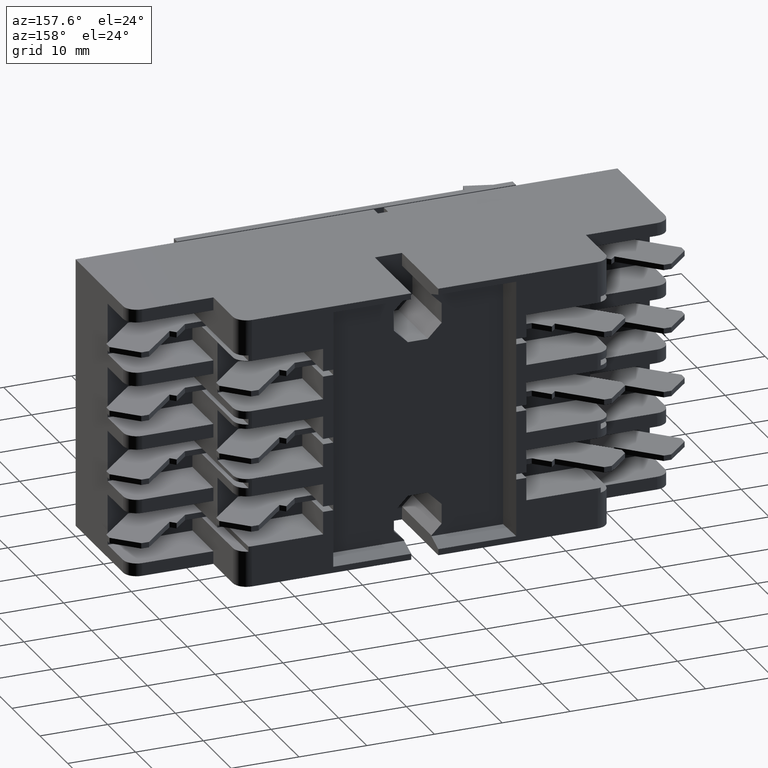
[diagram: clean part render]
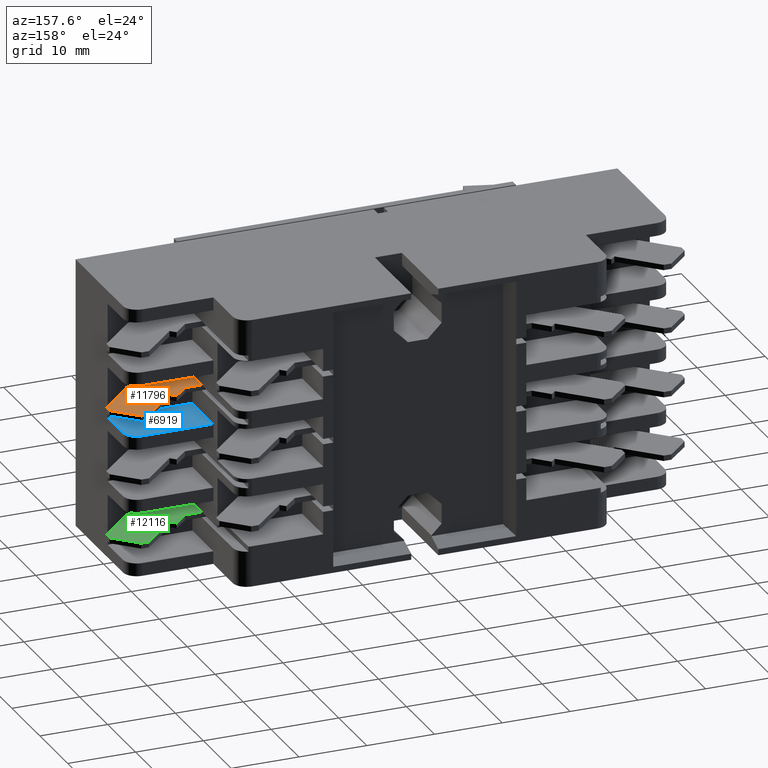
[diagram: same view with three faces highlighted in distinct colors, each labeled with its STEP entity id]
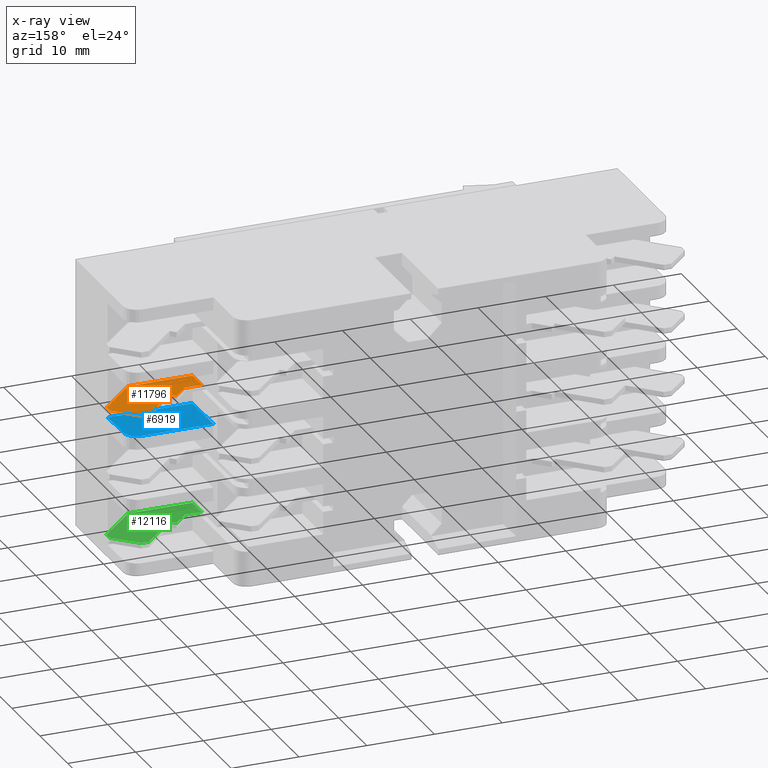
[diagram: x-ray of the same camera — body ghosted, the three highlighted faces saturated]
A machine part, auxiliary view with three faces highlighted in distinct colors.
The next image is the same camera in x-ray (body ghosted, the three faces saturated) — at least one of them is partly hidden behind the body in this view.
Their STEP definitions:

[orange] entity #11796 — the highlighted planar face has unit normal (0, 0, 1).
#6826=CARTESIAN_POINT('',(36.999999999999993,11.500000000000014,-14.750000000000014));
#6827=VERTEX_POINT('',#6826);
#6828=CARTESIAN_POINT('',(27.499999999999993,11.500000000000012,-14.750000000000014));
#6829=VERTEX_POINT('',#6828);
#6830=CARTESIAN_POINT('',(36.999999999999993,11.500000000000012,-14.750000000000014));
#6831=DIRECTION('',(-1.0,0.0,0.0));
#6832=VECTOR('',#6831,9.500000000000000);
#6833=LINE('',#6830,#6832);
#6834=EDGE_CURVE('',#6827,#6829,#6833,.T.);
#8969=CARTESIAN_POINT('',(27.499999999999986,14.879999999999995,-14.750000000000014));
#8970=VERTEX_POINT('',#8969);
#9490=CARTESIAN_POINT('',(27.499999999999986,11.500000000000012,-14.750000000000016));
#9491=DIRECTION('',(0.0,1.0,0.0));
#9492=VECTOR('',#9491,3.379999999999983);
#9493=LINE('',#9490,#9492);
#9494=EDGE_CURVE('',#6829,#8970,#9493,.T.);
#11526=CARTESIAN_POINT('',(42.444722215136409,16.944722215136423,-14.750000000000014));
#11527=VERTEX_POINT('',#11526);
#11536=CARTESIAN_POINT('',(42.444722215136409,16.944722215136423,-14.750000000000014));
#11537=DIRECTION('',(-0.707106781186547,-0.707106781186547,0.0));
#11538=VECTOR('',#11537,7.700000000000000);
#11539=LINE('',#11536,#11538);
#11540=EDGE_CURVE('',#11527,#6827,#11539,.T.);
#11559=CARTESIAN_POINT('',(37.989949493661150,21.399494936611674,-14.750000000000014));
#11560=VERTEX_POINT('',#11559);
#11575=CARTESIAN_POINT('',(32.828069990999353,16.237615433949870,-14.750000000000014));
#11576=VERTEX_POINT('',#11575);
#11583=CARTESIAN_POINT('',(32.828069990999353,16.237615433949870,-14.750000000000014));
#11584=DIRECTION('',(0.707106781186547,0.707106781186548,0.0));
#11585=VECTOR('',#11584,7.300000000000006);
#11586=LINE('',#11583,#11585);
#11587=EDGE_CURVE('',#11576,#11560,#11586,.T.);
#11597=CARTESIAN_POINT('',(32.085607870753478,16.980077554195741,-14.750000000000014));
#11598=VERTEX_POINT('',#11597);
#11599=CARTESIAN_POINT('',(32.085607870753478,16.980077554195741,-14.750000000000014));
#11600=DIRECTION('',(0.707106781186549,-0.707106781186546,0.0));
#11601=VECTOR('',#11600,1.049999999999998);
#11602=LINE('',#11599,#11601);
#11603=EDGE_CURVE('',#11598,#11576,#11602,.T.);
#11628=CARTESIAN_POINT('',(29.985530316557735,14.880000000000003,-14.750000000000014));
#11629=VERTEX_POINT('',#11628);
#11630=CARTESIAN_POINT('',(29.985530316557735,14.880000000000004,-14.750000000000014));
#11631=DIRECTION('',(0.707106781186548,0.707106781186547,0.0));
#11632=VECTOR('',#11631,2.969958159178934);
#11633=LINE('',#11630,#11632);
#11634=EDGE_CURVE('',#11629,#11598,#11633,.T.);
#11666=CARTESIAN_POINT('',(27.499999999999986,14.879999999999995,-14.750000000000014));
#11667=DIRECTION('',(1.0,0.0,0.0));
#11668=VECTOR('',#11667,2.485530316557750);
#11669=LINE('',#11666,#11668);
#11670=EDGE_CURVE('',#8970,#11629,#11669,.T.);
#11688=CARTESIAN_POINT('',(39.121320343559624,21.399494936611674,-14.750000000000014));
#11689=VERTEX_POINT('',#11688);
#11690=CARTESIAN_POINT('',(37.989949493661150,21.399494936611671,-14.750000000000014));
#11691=DIRECTION('',(1.0,0.0,0.0));
#11692=VECTOR('',#11691,1.131370849898474);
#11693=LINE('',#11690,#11692);
#11694=EDGE_CURVE('',#11560,#11689,#11693,.T.);
#11721=CARTESIAN_POINT('',(42.444722215136402,18.076093065034900,-14.750000000000014));
#11722=VERTEX_POINT('',#11721);
#11736=CARTESIAN_POINT('',(39.121320343559624,21.399494936611674,-14.750000000000014));
#11737=DIRECTION('',(0.707106781186548,-0.707106781186547,0.0));
#11738=VECTOR('',#11737,4.700000000000001);
#11739=LINE('',#11736,#11738);
#11740=EDGE_CURVE('',#11689,#11722,#11739,.T.);
#11750=CARTESIAN_POINT('',(42.444722215136409,18.076093065034900,-14.750000000000014));
#11751=DIRECTION('',(0.0,-1.0,0.0));
#11752=VECTOR('',#11751,1.131370849898477);
#11753=LINE('',#11750,#11752);
#11754=EDGE_CURVE('',#11722,#11527,#11753,.T.);
#11779=CARTESIAN_POINT('',(36.777443983636800,16.510289440755063,-14.750000000000014));
#11780=DIRECTION('',(0.0,0.0,1.0));
#11781=DIRECTION('',(1.0,0.0,0.0));
#11782=AXIS2_PLACEMENT_3D('',#11779,#11780,#11781);
#11783=PLANE('',#11782);
#11784=ORIENTED_EDGE('',*,*,#9494,.F.);
#11785=ORIENTED_EDGE('',*,*,#6834,.F.);
#11786=ORIENTED_EDGE('',*,*,#11540,.F.);
#11787=ORIENTED_EDGE('',*,*,#11754,.F.);
#11788=ORIENTED_EDGE('',*,*,#11740,.F.);
#11789=ORIENTED_EDGE('',*,*,#11694,.F.);
#11790=ORIENTED_EDGE('',*,*,#11587,.F.);
#11791=ORIENTED_EDGE('',*,*,#11603,.F.);
#11792=ORIENTED_EDGE('',*,*,#11634,.F.);
#11793=ORIENTED_EDGE('',*,*,#11670,.F.);
#11794=EDGE_LOOP('',(#11784,#11785,#11786,#11787,#11788,#11789,#11790,#11791,#11792,#11793));
#11795=FACE_OUTER_BOUND('',#11794,.T.);
#11796=ADVANCED_FACE('',(#11795),#11783,.T.);

[blue] entity #6919 — the highlighted planar face has unit normal (0, 0, -1).
#5991=CARTESIAN_POINT('',(39.999999999999993,17.000000000000021,-18.900000000000009));
#5992=VERTEX_POINT('',#5991);
#5999=CARTESIAN_POINT('',(39.999999999999993,11.500000000000012,-18.900000000000009));
#6000=VERTEX_POINT('',#5999);
#6001=CARTESIAN_POINT('',(39.999999999999993,17.000000000000021,-18.900000000000009));
#6002=DIRECTION('',(0.0,-1.0,0.0));
#6003=VECTOR('',#6002,5.500000000000009);
#6004=LINE('',#6001,#6003);
#6005=EDGE_CURVE('',#5992,#6000,#6004,.T.);
#6118=CARTESIAN_POINT('',(37.999999999999986,19.000000000000011,-18.900000000000009));
#6119=VERTEX_POINT('',#6118);
#6120=CARTESIAN_POINT('',(37.999999999999986,17.000000000000021,-18.900000000000009));
#6121=DIRECTION('',(0.0,0.0,-1.000000000000000));
#6122=DIRECTION('',(0.707106781186548,0.707106781186548,0.0));
#6123=AXIS2_PLACEMENT_3D('',#6120,#6121,#6122);
#6124=CIRCLE('',#6123,2.000000000000000);
#6125=EDGE_CURVE('',#6119,#5992,#6124,.T.);
#6279=CARTESIAN_POINT('',(27.499999999999993,19.000000000000007,-18.900000000000009));
#6280=VERTEX_POINT('',#6279);
#6281=CARTESIAN_POINT('',(27.499999999999993,19.000000000000014,-18.900000000000009));
#6282=DIRECTION('',(1.0,0.0,0.0));
#6283=VECTOR('',#6282,10.499999999999993);
#6284=LINE('',#6281,#6283);
#6285=EDGE_CURVE('',#6280,#6119,#6284,.T.);
#6851=CARTESIAN_POINT('',(27.499999999999993,11.500000000000007,-18.900000000000009));
#6852=VERTEX_POINT('',#6851);
#6853=CARTESIAN_POINT('',(39.999999999999993,11.500000000000011,-18.900000000000009));
#6854=DIRECTION('',(-1.0,0.0,0.0));
#6855=VECTOR('',#6854,12.500000000000000);
#6856=LINE('',#6853,#6855);
#6857=EDGE_CURVE('',#6000,#6852,#6856,.T.);
#6902=CARTESIAN_POINT('',(39.999999999999993,19.000000000000011,-18.900000000000009));
#6903=DIRECTION('',(0.0,0.0,-1.0));
#6904=DIRECTION('',(-1.0,0.0,0.0));
#6905=AXIS2_PLACEMENT_3D('',#6902,#6903,#6904);
#6906=PLANE('',#6905);
#6907=ORIENTED_EDGE('',*,*,#6125,.F.);
#6908=ORIENTED_EDGE('',*,*,#6285,.F.);
#6909=CARTESIAN_POINT('',(27.499999999999993,19.000000000000007,-18.900000000000009));
#6910=DIRECTION('',(0.0,-1.0,0.0));
#6911=VECTOR('',#6910,7.500000000000000);
#6912=LINE('',#6909,#6911);
#6913=EDGE_CURVE('',#6280,#6852,#6912,.T.);
#6914=ORIENTED_EDGE('',*,*,#6913,.T.);
#6915=ORIENTED_EDGE('',*,*,#6857,.F.);
#6916=ORIENTED_EDGE('',*,*,#6005,.F.);
#6917=EDGE_LOOP('',(#6907,#6908,#6914,#6915,#6916));
#6918=FACE_OUTER_BOUND('',#6917,.T.);
#6919=ADVANCED_FACE('',(#6918),#6906,.F.);

[green] entity #12116 — the highlighted planar face has unit normal (0, 0, 1).
#8731=CARTESIAN_POINT('',(36.999999999999993,11.500000000000014,-33.750000000000014));
#8732=VERTEX_POINT('',#8731);
#8739=CARTESIAN_POINT('',(27.499999999999993,11.500000000000012,-33.750000000000014));
#8740=VERTEX_POINT('',#8739);
#8741=CARTESIAN_POINT('',(36.999999999999993,11.500000000000014,-33.750000000000014));
#8742=DIRECTION('',(-1.0,0.0,0.0));
#8743=VECTOR('',#8742,9.500000000000000);
#8744=LINE('',#8741,#8743);
#8745=EDGE_CURVE('',#8732,#8740,#8744,.T.);
#8889=CARTESIAN_POINT('',(27.499999999999986,14.879999999999997,-33.750000000000014));
#8890=VERTEX_POINT('',#8889);
#9549=CARTESIAN_POINT('',(27.499999999999986,11.500000000000012,-33.750000000000014));
#9550=DIRECTION('',(0.0,1.0,0.0));
#9551=VECTOR('',#9550,3.379999999999985);
#9552=LINE('',#9549,#9551);
#9553=EDGE_CURVE('',#8740,#8890,#9552,.T.);
#11846=CARTESIAN_POINT('',(42.444722215136430,16.944722215136427,-33.750000000000014));
#11847=VERTEX_POINT('',#11846);
#11856=CARTESIAN_POINT('',(42.444722215136430,16.944722215136430,-33.750000000000014));
#11857=DIRECTION('',(-0.707106781186547,-0.707106781186548,0.0));
#11858=VECTOR('',#11857,7.700000000000002);
#11859=LINE('',#11856,#11858);
#11860=EDGE_CURVE('',#11847,#8732,#11859,.T.);
#11879=CARTESIAN_POINT('',(37.989949493661172,21.399494936611674,-33.750000000000014));
#11880=VERTEX_POINT('',#11879);
#11895=CARTESIAN_POINT('',(32.828069990999381,16.237615433949873,-33.750000000000014));
#11896=VERTEX_POINT('',#11895);
#11903=CARTESIAN_POINT('',(32.828069990999381,16.237615433949877,-33.750000000000014));
#11904=DIRECTION('',(0.707106781186547,0.707106781186548,0.0));
#11905=VECTOR('',#11904,7.299999999999998);
#11906=LINE('',#11903,#11905);
#11907=EDGE_CURVE('',#11896,#11880,#11906,.T.);
#11917=CARTESIAN_POINT('',(32.085607870753499,16.980077554195745,-33.750000000000014));
#11918=VERTEX_POINT('',#11917);
#11919=CARTESIAN_POINT('',(32.085607870753499,16.980077554195748,-33.750000000000014));
#11920=DIRECTION('',(0.707106781186551,-0.707106781186544,0.0));
#11921=VECTOR('',#11920,1.050000000000006);
#11922=LINE('',#11919,#11921);
#11923=EDGE_CURVE('',#11918,#11896,#11922,.T.);
#11948=CARTESIAN_POINT('',(29.985530316557757,14.880000000000004,-33.750000000000014));
#11949=VERTEX_POINT('',#11948);
#11950=CARTESIAN_POINT('',(29.985530316557753,14.880000000000006,-33.750000000000014));
#11951=DIRECTION('',(0.707106781186549,0.707106781186546,0.0));
#11952=VECTOR('',#11951,2.969958159178937);
#11953=LINE('',#11950,#11952);
#11954=EDGE_CURVE('',#11949,#11918,#11953,.T.);
#11986=CARTESIAN_POINT('',(27.499999999999986,14.879999999999997,-33.750000000000014));
#11987=DIRECTION('',(1.0,0.0,0.0));
#11988=VECTOR('',#11987,2.485530316557771);
#11989=LINE('',#11986,#11988);
#11990=EDGE_CURVE('',#8890,#11949,#11989,.T.);
#12008=CARTESIAN_POINT('',(39.121320343559645,21.399494936611674,-33.750000000000014));
#12009=VERTEX_POINT('',#12008);
#12010=CARTESIAN_POINT('',(37.989949493661172,21.399494936611674,-33.750000000000014));
#12011=DIRECTION('',(1.0,0.0,0.0));
#12012=VECTOR('',#12011,1.131370849898474);
#12013=LINE('',#12010,#12012);
#12014=EDGE_CURVE('',#11880,#12009,#12013,.T.);
#12041=CARTESIAN_POINT('',(42.444722215136430,18.076093065034900,-33.750000000000014));
#12042=VERTEX_POINT('',#12041);
#12056=CARTESIAN_POINT('',(39.121320343559653,21.399494936611681,-33.750000000000014));
#12057=DIRECTION('',(0.707106781186548,-0.707106781186547,0.0));
#12058=VECTOR('',#12057,4.700000000000011);
#12059=LINE('',#12056,#12058);
#12060=EDGE_CURVE('',#12009,#12042,#12059,.T.);
#12070=CARTESIAN_POINT('',(42.444722215136430,18.076093065034900,-33.750000000000014));
#12071=DIRECTION('',(0.0,-1.0,0.0));
#12072=VECTOR('',#12071,1.131370849898474);
#12073=LINE('',#12070,#12072);
#12074=EDGE_CURVE('',#12042,#11847,#12073,.T.);
#12099=CARTESIAN_POINT('',(36.777443983636829,16.510289440755066,-33.750000000000014));
#12100=DIRECTION('',(0.0,0.0,1.0));
#12101=DIRECTION('',(1.0,0.0,0.0));
#12102=AXIS2_PLACEMENT_3D('',#12099,#12100,#12101);
#12103=PLANE('',#12102);
#12104=ORIENTED_EDGE('',*,*,#9553,.F.);
#12105=ORIENTED_EDGE('',*,*,#8745,.F.);
#12106=ORIENTED_EDGE('',*,*,#11860,.F.);
#12107=ORIENTED_EDGE('',*,*,#12074,.F.);
#12108=ORIENTED_EDGE('',*,*,#12060,.F.);
#12109=ORIENTED_EDGE('',*,*,#12014,.F.);
#12110=ORIENTED_EDGE('',*,*,#11907,.F.);
#12111=ORIENTED_EDGE('',*,*,#11923,.F.);
#12112=ORIENTED_EDGE('',*,*,#11954,.F.);
#12113=ORIENTED_EDGE('',*,*,#11990,.F.);
#12114=EDGE_LOOP('',(#12104,#12105,#12106,#12107,#12108,#12109,#12110,#12111,#12112,#12113));
#12115=FACE_OUTER_BOUND('',#12114,.T.);
#12116=ADVANCED_FACE('',(#12115),#12103,.T.);